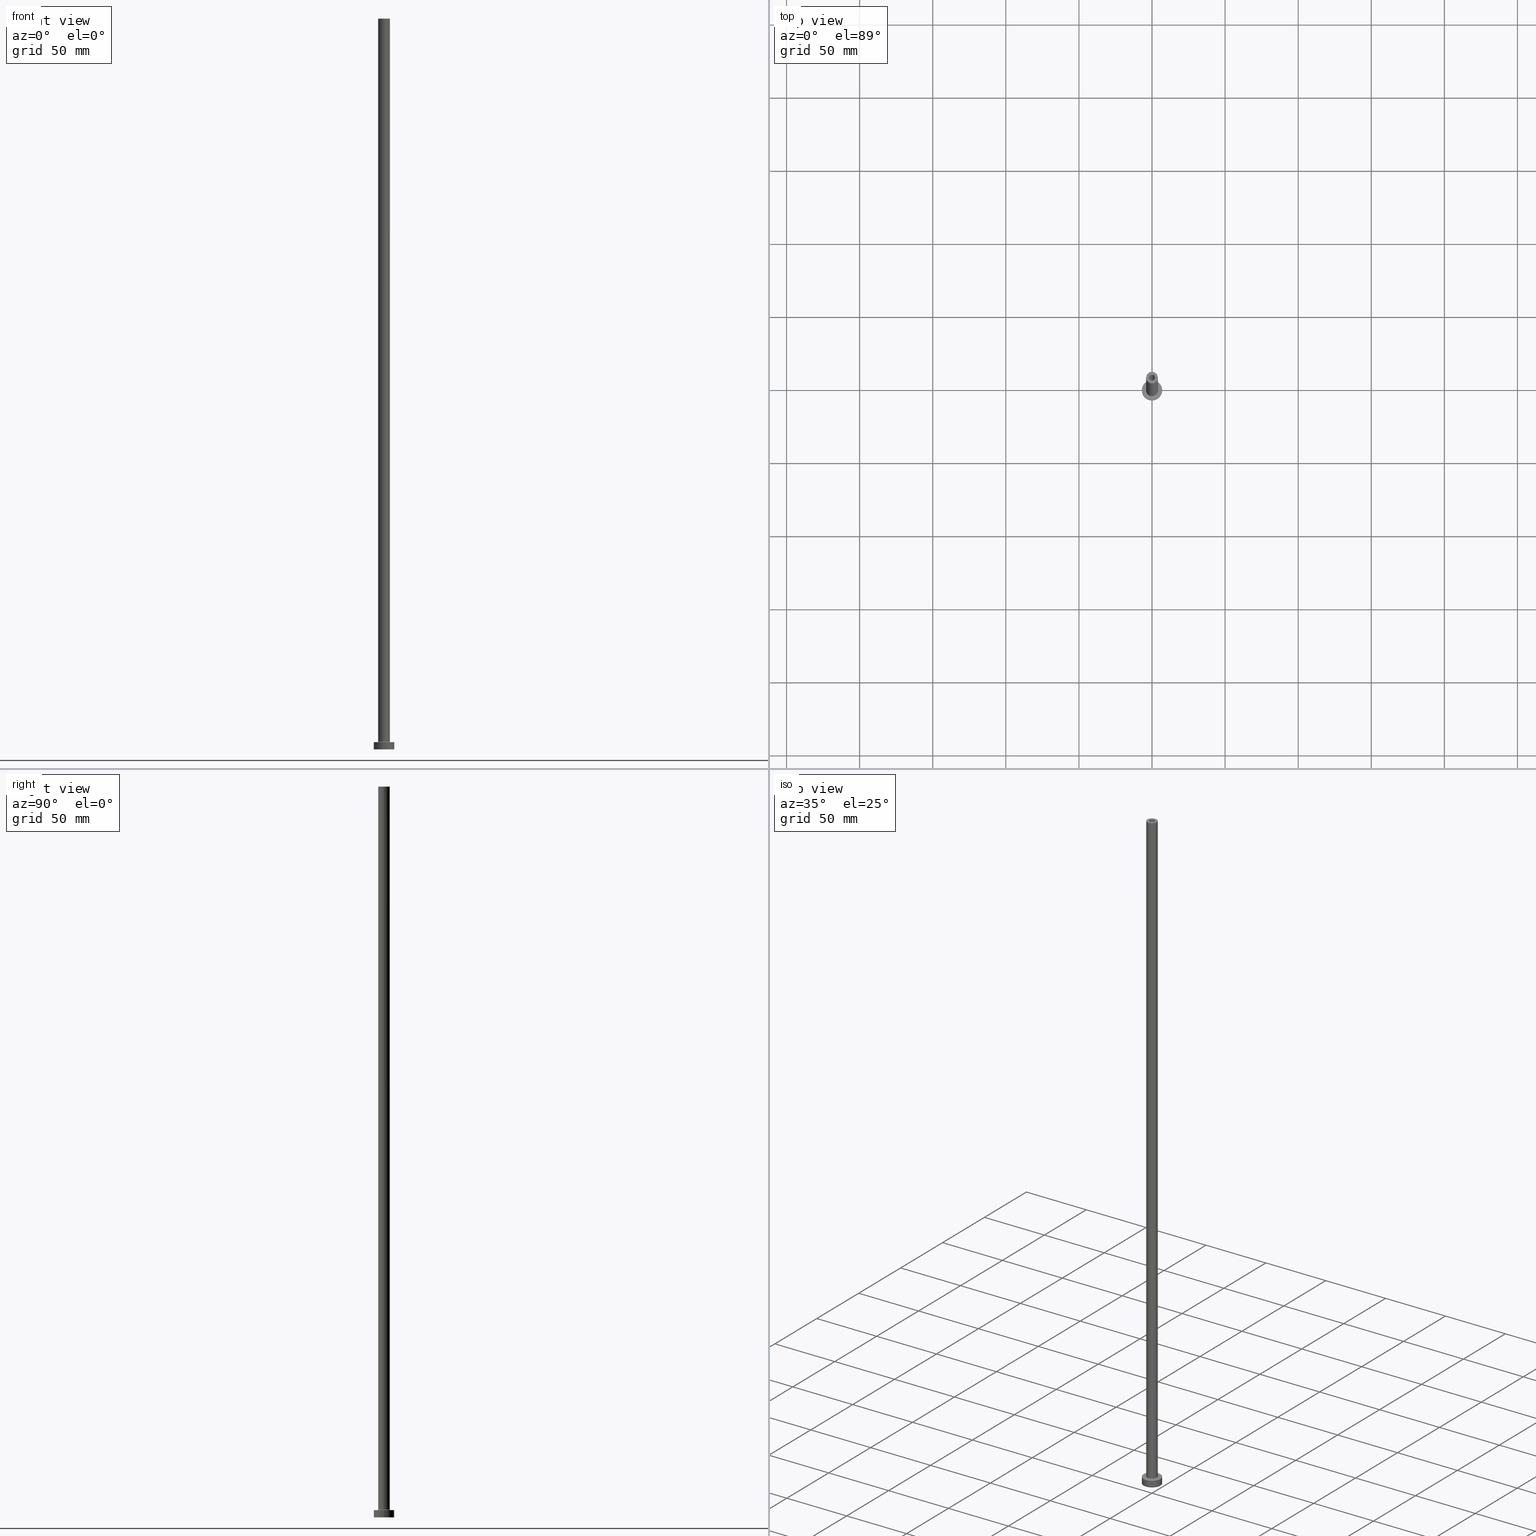
[diagram: canonical four-view strip — front | top / right | iso, engineering-drawing reading convention]
A machine part, canonical four-view strip (front | top / right | iso — engineering-drawing reading convention). The complete STEP part file that produces these views, byte-faithful:
ISO-10303-21;
HEADER;
FILE_DESCRIPTION (( 'STEP AP203' ),
    '1' );
FILE_NAME ('b84e.STEP',
    '2023-02-13T17:37:01',
    ( '' ),
    ( '' ),
    'SwSTEP 2.0',
    'SolidWorks 2019',
    '' );
FILE_SCHEMA (( 'CONFIG_CONTROL_DESIGN' ));
ENDSEC;

DATA;
#1 = ADVANCED_FACE ( 'NONE', ( #301, #177 ), #440, .T. ) ;
#2 = LINE ( 'NONE', #138, #155 ) ;
#3 = CARTESIAN_POINT ( 'NONE',  ( 0.000000000000000000, 0.000000000000000000, 455.0000000000000000 ) ) ;
#4 = AXIS2_PLACEMENT_3D ( 'NONE', #136, #294, #437 ) ;
#5 = PERSON_AND_ORGANIZATION_ROLE ( 'design_owner' ) ;
#6 = COORDINATED_UNIVERSAL_TIME_OFFSET ( 1, 0, .AHEAD. ) ;
#7 = DIRECTION ( 'NONE',  ( 1.000000000000000000, 0.000000000000000000, 0.000000000000000000 ) ) ;
#8 = EDGE_CURVE ( 'NONE', #53, #359, #404, .T. ) ;
#9 = FACE_OUTER_BOUND ( 'NONE', #207, .T. ) ;
#10 = ORIENTED_EDGE ( 'NONE', *, *, #47, .F. ) ;
#11 = CARTESIAN_POINT ( 'NONE',  ( 4.500000000000000888, 0.000000000000000000, 5.000000000000002665 ) ) ;
#12 = CYLINDRICAL_SURFACE ( 'NONE', #333, 2.000000000000000000 ) ;
#13 = DIRECTION ( 'NONE',  ( -0.000000000000000000, -0.000000000000000000, -1.000000000000000000 ) ) ;
#14 = VECTOR ( 'NONE', #121, 1000.000000000000000 ) ;
#15 = ORIENTED_EDGE ( 'NONE', *, *, #58, .T. ) ;
#16 = CIRCLE ( 'NONE', #347, 4.000000000000000000 ) ;
#17 = DIRECTION ( 'NONE',  ( 0.000000000000000000, 0.000000000000000000, -1.000000000000000000 ) ) ;
#18 = LINE ( 'NONE', #219, #331 ) ;
#19 = CARTESIAN_POINT ( 'NONE',  ( -4.000000000000000000, 0.000000000000000000, 500.0000000000000000 ) ) ;
#20 = AXIS2_PLACEMENT_3D ( 'NONE', #83, #174, #221 ) ;
#21 = DIRECTION ( 'NONE',  ( 1.224646799147353207E-16, 1.000000000000000000, -0.000000000000000000 ) ) ;
#22 = ORIENTED_EDGE ( 'NONE', *, *, #38, .F. ) ;
#23 = EDGE_LOOP ( 'NONE', ( #352, #327, #142, #399 ) ) ;
#24 = EDGE_LOOP ( 'NONE', ( #349, #425 ) ) ;
#25 = CARTESIAN_POINT ( 'NONE',  ( 4.000000000000000000, 4.898587196589412829E-16, 500.0000000000000000 ) ) ;
#26 = FACE_OUTER_BOUND ( 'NONE', #334, .T. ) ;
#27 = ORIENTED_EDGE ( 'NONE', *, *, #251, .F. ) ;
#28 = DIRECTION ( 'NONE',  ( 1.000000000000000000, 0.000000000000000000, 0.000000000000000000 ) ) ;
#29 = CALENDAR_DATE ( 2023, 13, 2 ) ;
#30 =( GEOMETRIC_REPRESENTATION_CONTEXT ( 3 ) GLOBAL_UNCERTAINTY_ASSIGNED_CONTEXT ( ( #215 ) ) GLOBAL_UNIT_ASSIGNED_CONTEXT ( ( #329, #278, #319 ) ) REPRESENTATION_CONTEXT ( 'NONE', 'WORKASPACE' ) );
#31 = PERSON_AND_ORGANIZATION ( #370, #405 ) ;
#32 = AXIS2_PLACEMENT_3D ( 'NONE', #187, #439, #338 ) ;
#33 = APPROVAL_DATE_TIME ( #244, #143 ) ;
#34 = ORIENTED_EDGE ( 'NONE', *, *, #217, .T. ) ;
#35 = CIRCLE ( 'NONE', #305, 0.5000000000000004441 ) ;
#36 = DIRECTION ( 'NONE',  ( 0.000000000000000000, 0.000000000000000000, -1.000000000000000000 ) ) ;
#37 = CIRCLE ( 'NONE', #415, 2.000000000000000000 ) ;
#38 = EDGE_CURVE ( 'NONE', #190, #270, #451, .T. ) ;
#39 = DIRECTION ( 'NONE',  ( 1.000000000000000000, 0.000000000000000000, 0.000000000000000000 ) ) ;
#40 = PRODUCT_RELATED_PRODUCT_CATEGORY ( 'detail', '', ( #146 ) ) ;
#41 = AXIS2_PLACEMENT_3D ( 'NONE', #413, #340, #382 ) ;
#42 = ORIENTED_EDGE ( 'NONE', *, *, #206, .F. ) ;
#43 = EDGE_CURVE ( 'NONE', #44, #263, #46, .T. ) ;
#44 = VERTEX_POINT ( 'NONE', #337 ) ;
#45 = CARTESIAN_POINT ( 'NONE',  ( 7.000000000000000000, 8.572527594031473190E-16, 5.000000000000000000 ) ) ;
#46 = LINE ( 'NONE', #180, #51 ) ;
#47 = EDGE_CURVE ( 'NONE', #115, #369, #2, .T. ) ;
#48 = EDGE_LOOP ( 'NONE', ( #277, #214 ) ) ;
#49 = CARTESIAN_POINT ( 'NONE',  ( -7.000000000000000000, 0.000000000000000000, 0.000000000000000000 ) ) ;
#50 = DIRECTION ( 'NONE',  ( -1.000000000000000000, 0.000000000000000000, 0.000000000000000000 ) ) ;
#51 = VECTOR ( 'NONE', #341, 1000.000000000000000 ) ;
#52 = ADVANCED_FACE ( 'NONE', ( #111, #257 ), #409, .F. ) ;
#53 = VERTEX_POINT ( 'NONE', #19 ) ;
#54 = CYLINDRICAL_SURFACE ( 'NONE', #32, 7.000000000000000000 ) ;
#55 = AXIS2_PLACEMENT_3D ( 'NONE', #386, #355, #95 ) ;
#56 = ORIENTED_EDGE ( 'NONE', *, *, #351, .T. ) ;
#57 = AXIS2_PLACEMENT_3D ( 'NONE', #302, #296, #39 ) ;
#58 = EDGE_CURVE ( 'NONE', #270, #190, #458, .T. ) ;
#59 = CARTESIAN_POINT ( 'NONE',  ( 0.000000000000000000, 0.000000000000000000, 0.000000000000000000 ) ) ;
#60 = FACE_OUTER_BOUND ( 'NONE', #238, .T. ) ;
#61 = EDGE_CURVE ( 'NONE', #134, #401, #172, .T. ) ;
#62 = VERTEX_POINT ( 'NONE', #49 ) ;
#63 = CIRCLE ( 'NONE', #85, 4.000000000000000000 ) ;
#64 = ORIENTED_EDGE ( 'NONE', *, *, #206, .T. ) ;
#65 = CARTESIAN_POINT ( 'NONE',  ( 0.000000000000000000, 0.000000000000000000, 5.500000000000005329 ) ) ;
#66 = DATE_AND_TIME ( #326, #373 ) ;
#67 = ORIENTED_EDGE ( 'NONE', *, *, #8, .F. ) ;
#68 = FACE_OUTER_BOUND ( 'NONE', #291, .T. ) ;
#69 = COORDINATED_UNIVERSAL_TIME_OFFSET ( 1, 0, .AHEAD. ) ;
#70 = CC_DESIGN_PERSON_AND_ORGANIZATION_ASSIGNMENT ( #31, #430, ( #265 ) ) ;
#71 = DIRECTION ( 'NONE',  ( 0.000000000000000000, 0.000000000000000000, 1.000000000000000000 ) ) ;
#72 = CIRCLE ( 'NONE', #76, 2.000000000000000000 ) ;
#73 = CARTESIAN_POINT ( 'NONE',  ( 0.000000000000000000, 0.000000000000000000, 500.0000000000000000 ) ) ;
#74 = CARTESIAN_POINT ( 'NONE',  ( -7.000000000000000000, 0.000000000000000000, 5.000000000000000000 ) ) ;
#75 = CIRCLE ( 'NONE', #306, 0.5000000000000004441 ) ;
#76 = AXIS2_PLACEMENT_3D ( 'NONE', #237, #357, #290 ) ;
#77 = LOCAL_TIME ( 18, 37, 1.000000000000000000, #69 ) ;
#78 = ORIENTED_EDGE ( 'NONE', *, *, #119, .T. ) ;
#79 = CYLINDRICAL_SURFACE ( 'NONE', #444, 2.000000000000000000 ) ;
#80 = APPLICATION_PROTOCOL_DEFINITION ( 'international standard', 'config_control_design', 1994, #442 ) ;
#81 = CARTESIAN_POINT ( 'NONE',  ( 0.000000000000000000, 0.000000000000000000, 0.000000000000000000 ) ) ;
#82 = DIRECTION ( 'NONE',  ( 0.000000000000000000, 0.000000000000000000, 1.000000000000000000 ) ) ;
#83 = CARTESIAN_POINT ( 'NONE',  ( 0.000000000000000000, 0.000000000000000000, 5.000000000000000000 ) ) ;
#84 = CARTESIAN_POINT ( 'NONE',  ( 7.000000000000000000, 8.572527594031473190E-16, 5.000000000000000000 ) ) ;
#85 = AXIS2_PLACEMENT_3D ( 'NONE', #193, #248, #252 ) ;
#86 = ORIENTED_EDGE ( 'NONE', *, *, #119, .F. ) ;
#87 = FACE_OUTER_BOUND ( 'NONE', #23, .T. ) ;
#88 = CARTESIAN_POINT ( 'NONE',  ( -2.149999999999999911, 0.000000000000000000, 461.0811183182043465 ) ) ;
#89 = AXIS2_PLACEMENT_3D ( 'NONE', #272, #264, #50 ) ;
#90 = PRODUCT_DEFINITION_SHAPE ( 'NONE', 'NONE',  #265 ) ;
#91 = CARTESIAN_POINT ( 'NONE',  ( 0.000000000000000000, 0.000000000000000000, 461.0811183182043465 ) ) ;
#92 = CARTESIAN_POINT ( 'NONE',  ( -4.500000000000000888, 5.510910596163089556E-16, 5.500000000000005329 ) ) ;
#93 = DIRECTION ( 'NONE',  ( 1.000000000000000000, 0.000000000000000000, 0.000000000000000000 ) ) ;
#94 = ORIENTED_EDGE ( 'NONE', *, *, #162, .F. ) ;
#95 = DIRECTION ( 'NONE',  ( 1.000000000000000000, 0.000000000000000000, 0.000000000000000000 ) ) ;
#96 = ORIENTED_EDGE ( 'NONE', *, *, #157, .T. ) ;
#97 = CIRCLE ( 'NONE', #385, 4.000000000000000000 ) ;
#98 = VECTOR ( 'NONE', #374, 1000.000000000000000 ) ;
#99 = ORIENTED_EDGE ( 'NONE', *, *, #336, .F. ) ;
#100 = LOCAL_TIME ( 18, 37, 1.000000000000000000, #361 ) ;
#101 = PERSON_AND_ORGANIZATION ( #370, #405 ) ;
#102 = CARTESIAN_POINT ( 'NONE',  ( 0.000000000000000000, 0.000000000000000000, 461.0811183182043465 ) ) ;
#103 = APPROVAL_ROLE ( '' ) ;
#104 = EDGE_CURVE ( 'NONE', #53, #448, #18, .T. ) ;
#105 = CARTESIAN_POINT ( 'NONE',  ( 0.000000000000000000, 0.000000000000000000, 0.000000000000000000 ) ) ;
#106 = CARTESIAN_POINT ( 'NONE',  ( -2.000000000000000000, 0.000000000000000000, 455.0000000000000000 ) ) ;
#107 = DIRECTION ( 'NONE',  ( 0.000000000000000000, 0.000000000000000000, 1.000000000000000000 ) ) ;
#108 = CARTESIAN_POINT ( 'NONE',  ( 0.000000000000000000, 0.000000000000000000, 500.0000000000000000 ) ) ;
#109 = AXIS2_PLACEMENT_3D ( 'NONE', #73, #165, #189 ) ;
#110 = AXIS2_PLACEMENT_3D ( 'NONE', #91, #194, #320 ) ;
#111 = FACE_BOUND ( 'NONE', #365, .T. ) ;
#112 = DIRECTION ( 'NONE',  ( -0.000000000000000000, -0.000000000000000000, -1.000000000000000000 ) ) ;
#113 = EDGE_CURVE ( 'NONE', #44, #134, #393, .T. ) ;
#114 = EDGE_LOOP ( 'NONE', ( #99, #127, #317, #383 ) ) ;
#115 = VERTEX_POINT ( 'NONE', #419 ) ;
#116 = PLANE ( 'NONE',  #339 ) ;
#117 = ADVANCED_FACE ( 'NONE', ( #9 ), #54, .T. ) ;
#118 = CARTESIAN_POINT ( 'NONE',  ( 4.500000000000000888, 0.000000000000000000, 5.500000000000005329 ) ) ;
#119 = EDGE_CURVE ( 'NONE', #387, #369, #236, .T. ) ;
#120 = DIRECTION ( 'NONE',  ( 0.000000000000000000, 0.000000000000000000, 1.000000000000000000 ) ) ;
#121 = DIRECTION ( 'NONE',  ( -0.000000000000000000, -0.000000000000000000, -1.000000000000000000 ) ) ;
#122 = CALENDAR_DATE ( 2023, 13, 2 ) ;
#123 = ORIENTED_EDGE ( 'NONE', *, *, #427, .T. ) ;
#124 = ADVANCED_FACE ( 'NONE', ( #60 ), #191, .T. ) ;
#125 = FACE_BOUND ( 'NONE', #350, .T. ) ;
#126 = APPROVAL_ROLE ( '' ) ;
#127 = ORIENTED_EDGE ( 'NONE', *, *, #153, .T. ) ;
#128 = DIRECTION ( 'NONE',  ( -1.000000000000000000, 0.000000000000000000, 0.000000000000000000 ) ) ;
#129 = CARTESIAN_POINT ( 'NONE',  ( -2.149999999999999911, 0.000000000000000000, 455.0000000000000000 ) ) ;
#130 = SECURITY_CLASSIFICATION_LEVEL ( 'unclassified' ) ;
#131 = PERSON_AND_ORGANIZATION ( #370, #405 ) ;
#132 = EDGE_CURVE ( 'NONE', #190, #62, #313, .T. ) ;
#133 = VECTOR ( 'NONE', #213, 1000.000000000000000 ) ;
#134 = VERTEX_POINT ( 'NONE', #129 ) ;
#135 = DIRECTION ( 'NONE',  ( -1.000000000000000000, 0.000000000000000000, 0.000000000000000000 ) ) ;
#136 = CARTESIAN_POINT ( 'NONE',  ( 0.000000000000000000, 0.000000000000000000, 5.500000000000005329 ) ) ;
#137 = CARTESIAN_POINT ( 'NONE',  ( -4.000000000000000000, 0.000000000000000000, 5.500000000000005329 ) ) ;
#138 = CARTESIAN_POINT ( 'NONE',  ( 2.000000000000000000, 2.449293598294705921E-16, 500.0000000000000000 ) ) ;
#139 = FACE_BOUND ( 'NONE', #384, .T. ) ;
#140 = DIRECTION ( 'NONE',  ( 0.000000000000000000, 0.000000000000000000, 1.000000000000000000 ) ) ;
#141 = LOCAL_TIME ( 18, 37, 1.000000000000000000, #330 ) ;
#142 = ORIENTED_EDGE ( 'NONE', *, *, #408, .T. ) ;
#143 = APPROVAL ( #154, 'NEUR�EN�' ) ;
#144 = CARTESIAN_POINT ( 'NONE',  ( 0.000000000000000000, 0.000000000000000000, 5.000000000000000000 ) ) ;
#145 = DIRECTION ( 'NONE',  ( -0.000000000000000000, -0.000000000000000000, -1.000000000000000000 ) ) ;
#146 = PRODUCT ( 'b84e', 'b84e', '', ( #199 ) ) ;
#147 = DIRECTION ( 'NONE',  ( 0.000000000000000000, 0.000000000000000000, 1.000000000000000000 ) ) ;
#148 = CC_DESIGN_APPROVAL ( #261, ( #265 ) ) ;
#149 = DIRECTION ( 'NONE',  ( 0.000000000000000000, -1.000000000000000000, 0.000000000000000000 ) ) ;
#150 = DIRECTION ( 'NONE',  ( -1.000000000000000000, 1.224646799147351482E-16, 0.000000000000000000 ) ) ;
#151 = DIRECTION ( 'NONE',  ( 1.000000000000000000, 0.000000000000000000, 0.000000000000000000 ) ) ;
#152 = ADVANCED_BREP_SHAPE_REPRESENTATION ( 'b84e', ( #234, #460 ), #30 ) ;
#153 = EDGE_CURVE ( 'NONE', #448, #220, #35, .T. ) ;
#154 = APPROVAL_STATUS ( 'not_yet_approved' ) ;
#155 = VECTOR ( 'NONE', #297, 1000.000000000000000 ) ;
#156 = ORIENTED_EDGE ( 'NONE', *, *, #427, .F. ) ;
#157 = EDGE_CURVE ( 'NONE', #225, #448, #97, .T. ) ;
#158 = EDGE_CURVE ( 'NONE', #280, #220, #434, .T. ) ;
#159 = PERSON_AND_ORGANIZATION_ROLE ( 'creator' ) ;
#160 = AXIS2_PLACEMENT_3D ( 'NONE', #59, #447, #275 ) ;
#161 = CARTESIAN_POINT ( 'NONE',  ( 4.000000000000000000, 4.898587196589412829E-16, 500.0000000000000000 ) ) ;
#162 = EDGE_CURVE ( 'NONE', #62, #250, #222, .T. ) ;
#163 = ORIENTED_EDGE ( 'NONE', *, *, #158, .T. ) ;
#164 = AXIS2_PLACEMENT_3D ( 'NONE', #446, #176, #267 ) ;
#165 = DIRECTION ( 'NONE',  ( -0.000000000000000000, -0.000000000000000000, -1.000000000000000000 ) ) ;
#166 = PERSON_AND_ORGANIZATION ( #370, #405 ) ;
#167 = ORIENTED_EDGE ( 'NONE', *, *, #239, .F. ) ;
#168 = AXIS2_PLACEMENT_3D ( 'NONE', #402, #356, #318 ) ;
#169 = CC_DESIGN_APPROVAL ( #143, ( #381 ) ) ;
#170 = CARTESIAN_POINT ( 'NONE',  ( -2.000000000000000000, 0.000000000000000000, 500.0000000000000000 ) ) ;
#171 = ORIENTED_EDGE ( 'NONE', *, *, #61, .F. ) ;
#172 = LINE ( 'NONE', #88, #227 ) ;
#173 = ORIENTED_EDGE ( 'NONE', *, *, #61, .T. ) ;
#174 = DIRECTION ( 'NONE',  ( 0.000000000000000000, 0.000000000000000000, 1.000000000000000000 ) ) ;
#175 = CARTESIAN_POINT ( 'NONE',  ( 0.000000000000000000, 0.000000000000000000, 5.000000000000000000 ) ) ;
#176 = DIRECTION ( 'NONE',  ( 0.000000000000000000, 0.000000000000000000, 1.000000000000000000 ) ) ;
#177 = FACE_OUTER_BOUND ( 'NONE', #24, .T. ) ;
#178 = CIRCLE ( 'NONE', #348, 2.149999999999999911 ) ;
#179 = ORIENTED_EDGE ( 'NONE', *, *, #132, .T. ) ;
#180 = CARTESIAN_POINT ( 'NONE',  ( 2.149999999999999911, 2.632990618166809235E-16, 461.0811183182043465 ) ) ;
#181 = CARTESIAN_POINT ( 'NONE',  ( -2.000000000000000000, 0.000000000000000000, 500.0000000000000000 ) ) ;
#182 = ADVANCED_FACE ( 'NONE', ( #26 ), #422, .F. ) ;
#183 = AXIS2_PLACEMENT_3D ( 'NONE', #218, #376, #7 ) ;
#184 = CC_DESIGN_DATE_AND_TIME_ASSIGNMENT ( #66, #246, ( #381 ) ) ;
#185 = DIRECTION ( 'NONE',  ( 0.000000000000000000, 0.000000000000000000, -1.000000000000000000 ) ) ;
#186 = APPROVAL_PERSON_ORGANIZATION ( #228, #261, #103 ) ;
#187 = CARTESIAN_POINT ( 'NONE',  ( 0.000000000000000000, 0.000000000000000000, 5.000000000000000000 ) ) ;
#188 = ADVANCED_FACE ( 'NONE', ( #125, #232 ), #273, .F. ) ;
#189 = DIRECTION ( 'NONE',  ( -1.000000000000000000, 0.000000000000000000, 0.000000000000000000 ) ) ;
#190 = VERTEX_POINT ( 'NONE', #74 ) ;
#191 = CYLINDRICAL_SURFACE ( 'NONE', #109, 4.000000000000000000 ) ;
#192 = AXIS2_PLACEMENT_3D ( 'NONE', #108, #380, #390 ) ;
#193 = CARTESIAN_POINT ( 'NONE',  ( 0.000000000000000000, 0.000000000000000000, 5.500000000000005329 ) ) ;
#194 = DIRECTION ( 'NONE',  ( 0.000000000000000000, 0.000000000000000000, -1.000000000000000000 ) ) ;
#195 = ORIENTED_EDGE ( 'NONE', *, *, #43, .F. ) ;
#196 = DATE_AND_TIME ( #360, #312 ) ;
#197 = EDGE_CURVE ( 'NONE', #359, #53, #16, .T. ) ;
#198 = ADVANCED_FACE ( 'NONE', ( #406 ), #79, .F. ) ;
#199 = MECHANICAL_CONTEXT ( 'NONE', #271, 'mechanical' ) ;
#200 = APPROVAL_STATUS ( 'not_yet_approved' ) ;
#201 = CALENDAR_DATE ( 2023, 13, 2 ) ;
#202 = CARTESIAN_POINT ( 'NONE',  ( 0.000000000000000000, 0.000000000000000000, 0.000000000000000000 ) ) ;
#203 = APPROVAL_ROLE ( '' ) ;
#204 = ORIENTED_EDGE ( 'NONE', *, *, #351, .F. ) ;
#205 = AXIS2_PLACEMENT_3D ( 'NONE', #443, #345, #28 ) ;
#206 = EDGE_CURVE ( 'NONE', #270, #250, #293, .T. ) ;
#207 = EDGE_LOOP ( 'NONE', ( #258, #64, #392, #256 ) ) ;
#208 = CARTESIAN_POINT ( 'NONE',  ( 4.000000000000000000, 4.898587196589412829E-16, 5.500000000000005329 ) ) ;
#209 = CARTESIAN_POINT ( 'NONE',  ( 0.000000000000000000, 0.000000000000000000, 500.0000000000000000 ) ) ;
#210 = ORIENTED_EDGE ( 'NONE', *, *, #162, .T. ) ;
#211 = AXIS2_PLACEMENT_3D ( 'NONE', #175, #112, #441 ) ;
#212 = APPROVAL_PERSON_ORGANIZATION ( #396, #143, #203 ) ;
#213 = DIRECTION ( 'NONE',  ( -0.000000000000000000, -0.000000000000000000, -1.000000000000000000 ) ) ;
#214 = ORIENTED_EDGE ( 'NONE', *, *, #113, .F. ) ;
#215 = UNCERTAINTY_MEASURE_WITH_UNIT (LENGTH_MEASURE( 1.000000000000000082E-05 ), #329, 'distance_accuracy_value', 'NONE');
#216 = PERSON_AND_ORGANIZATION ( #370, #405 ) ;
#217 = EDGE_CURVE ( 'NONE', #263, #401, #438, .T. ) ;
#218 = CARTESIAN_POINT ( 'NONE',  ( 0.000000000000000000, 0.000000000000000000, 500.0000000000000000 ) ) ;
#219 = CARTESIAN_POINT ( 'NONE',  ( -4.000000000000000000, 0.000000000000000000, 500.0000000000000000 ) ) ;
#220 = VERTEX_POINT ( 'NONE', #400 ) ;
#221 = DIRECTION ( 'NONE',  ( 1.000000000000000000, 0.000000000000000000, 0.000000000000000000 ) ) ;
#222 = CIRCLE ( 'NONE', #160, 7.000000000000000000 ) ;
#223 = CYLINDRICAL_SURFACE ( 'NONE', #192, 4.000000000000000000 ) ;
#224 = CARTESIAN_POINT ( 'NONE',  ( 0.000000000000000000, 0.000000000000000000, 0.000000000000000000 ) ) ;
#225 = VERTEX_POINT ( 'NONE', #208 ) ;
#226 = CARTESIAN_POINT ( 'NONE',  ( 0.000000000000000000, 0.000000000000000000, 500.0000000000000000 ) ) ;
#227 = VECTOR ( 'NONE', #416, 1000.000000000000000 ) ;
#228 = PERSON_AND_ORGANIZATION ( #370, #405 ) ;
#229 = ORIENTED_EDGE ( 'NONE', *, *, #113, .T. ) ;
#230 = CIRCLE ( 'NONE', #211, 4.500000000000000888 ) ;
#231 = FACE_OUTER_BOUND ( 'NONE', #321, .T. ) ;
#232 = FACE_OUTER_BOUND ( 'NONE', #48, .T. ) ;
#233 = EDGE_LOOP ( 'NONE', ( #27, #156 ) ) ;
#234 = MANIFOLD_SOLID_BREP ( 'Odebrat vysunut�m4', #247 ) ;
#235 = CARTESIAN_POINT ( 'NONE',  ( 0.000000000000000000, 0.000000000000000000, 500.0000000000000000 ) ) ;
#236 = CIRCLE ( 'NONE', #303, 2.000000000000000000 ) ;
#237 = CARTESIAN_POINT ( 'NONE',  ( 0.000000000000000000, 0.000000000000000000, 500.0000000000000000 ) ) ;
#238 = EDGE_LOOP ( 'NONE', ( #429, #260, #96, #398 ) ) ;
#239 = EDGE_CURVE ( 'NONE', #369, #387, #455, .T. ) ;
#240 = DIRECTION ( 'NONE',  ( 1.000000000000000000, 0.000000000000000000, 0.000000000000000000 ) ) ;
#241 = AXIS2_PLACEMENT_3D ( 'NONE', #105, #287, #432 ) ;
#242 = EDGE_LOOP ( 'NONE', ( #461, #423, #86, #342 ) ) ;
#243 = CYLINDRICAL_SURFACE ( 'NONE', #289, 2.149999999999999911 ) ;
#244 = DATE_AND_TIME ( #122, #77 ) ;
#245 = DIRECTION ( 'NONE',  ( 1.000000000000000000, 0.000000000000000000, 0.000000000000000000 ) ) ;
#246 = DATE_TIME_ROLE ( 'classification_date' ) ;
#247 = CLOSED_SHELL ( 'NONE', ( #198, #182, #457, #124, #117, #285, #282, #52, #418, #1, #389, #300, #188, #292 ) ) ;
#248 = DIRECTION ( 'NONE',  ( 0.000000000000000000, 0.000000000000000000, 1.000000000000000000 ) ) ;
#249 = AXIS2_PLACEMENT_3D ( 'NONE', #255, #410, #298 ) ;
#250 = VERTEX_POINT ( 'NONE', #283 ) ;
#251 = EDGE_CURVE ( 'NONE', #274, #115, #37, .T. ) ;
#252 = DIRECTION ( 'NONE',  ( 1.000000000000000000, 0.000000000000000000, 0.000000000000000000 ) ) ;
#253 = APPLICATION_PROTOCOL_DEFINITION ( 'international standard', 'config_control_design', 1994, #271 ) ;
#254 = CIRCLE ( 'NONE', #362, 7.000000000000000000 ) ;
#255 = CARTESIAN_POINT ( 'NONE',  ( 0.000000000000000000, 0.000000000000000000, 455.0000000000000000 ) ) ;
#256 = ORIENTED_EDGE ( 'NONE', *, *, #132, .F. ) ;
#257 = FACE_OUTER_BOUND ( 'NONE', #453, .T. ) ;
#258 = ORIENTED_EDGE ( 'NONE', *, *, #58, .F. ) ;
#259 = EDGE_CURVE ( 'NONE', #220, #280, #230, .T. ) ;
#260 = ORIENTED_EDGE ( 'NONE', *, *, #375, .T. ) ;
#261 = APPROVAL ( #200, 'NEUR�EN�' ) ;
#262 = APPROVAL_PERSON_ORGANIZATION ( #166, #379, #126 ) ;
#263 = VERTEX_POINT ( 'NONE', #414 ) ;
#264 = DIRECTION ( 'NONE',  ( -0.000000000000000000, -0.000000000000000000, -1.000000000000000000 ) ) ;
#265 = PRODUCT_DEFINITION ( 'NEZN�M�', '', #323, #378 ) ;
#266 = DIRECTION ( 'NONE',  ( 1.000000000000000000, 0.000000000000000000, 0.000000000000000000 ) ) ;
#267 = DIRECTION ( 'NONE',  ( 1.000000000000000000, 0.000000000000000000, 0.000000000000000000 ) ) ;
#268 = FACE_OUTER_BOUND ( 'NONE', #324, .T. ) ;
#269 = CARTESIAN_POINT ( 'NONE',  ( -2.149999999999999911, 0.000000000000000000, 0.000000000000000000 ) ) ;
#270 = VERTEX_POINT ( 'NONE', #84 ) ;
#271 = APPLICATION_CONTEXT ( 'configuration controlled 3d designs of mechanical parts and assemblies' ) ;
#272 = CARTESIAN_POINT ( 'NONE',  ( 0.000000000000000000, 0.000000000000000000, 5.000000000000000000 ) ) ;
#273 = PLANE ( 'NONE',  #249 ) ;
#274 = VERTEX_POINT ( 'NONE', #181 ) ;
#275 = DIRECTION ( 'NONE',  ( 1.000000000000000000, 0.000000000000000000, 0.000000000000000000 ) ) ;
#276 = PERSON_AND_ORGANIZATION_ROLE ( 'design_supplier' ) ;
#277 = ORIENTED_EDGE ( 'NONE', *, *, #314, .F. ) ;
#278 =( NAMED_UNIT ( * ) PLANE_ANGLE_UNIT ( ) SI_UNIT ( $, .RADIAN. ) );
#279 = VECTOR ( 'NONE', #325, 1000.000000000000000 ) ;
#280 = VERTEX_POINT ( 'NONE', #11 ) ;
#281 = CC_DESIGN_SECURITY_CLASSIFICATION ( #381, ( #323 ) ) ;
#282 = ADVANCED_FACE ( 'NONE', ( #139, #231 ), #116, .T. ) ;
#283 = CARTESIAN_POINT ( 'NONE',  ( 7.000000000000000000, 8.572527594031473190E-16, 0.000000000000000000 ) ) ;
#284 = PERSON_AND_ORGANIZATION_ROLE ( 'classification_officer' ) ;
#285 = ADVANCED_FACE ( 'NONE', ( #311 ), #315, .T. ) ;
#286 = DIRECTION ( 'NONE',  ( 0.000000000000000000, 0.000000000000000000, 1.000000000000000000 ) ) ;
#287 = DIRECTION ( 'NONE',  ( -0.000000000000000000, -0.000000000000000000, -1.000000000000000000 ) ) ;
#288 = ORIENTED_EDGE ( 'NONE', *, *, #436, .T. ) ;
#289 = AXIS2_PLACEMENT_3D ( 'NONE', #102, #454, #128 ) ;
#290 = DIRECTION ( 'NONE',  ( 1.000000000000000000, 0.000000000000000000, 0.000000000000000000 ) ) ;
#291 = EDGE_LOOP ( 'NONE', ( #195, #229, #173, #56 ) ) ;
#292 = ADVANCED_FACE ( 'NONE', ( #344 ), #12, .F. ) ;
#293 = LINE ( 'NONE', #45, #133 ) ;
#294 = DIRECTION ( 'NONE',  ( 0.000000000000000000, 0.000000000000000000, 1.000000000000000000 ) ) ;
#295 = CC_DESIGN_APPROVAL ( #379, ( #323 ) ) ;
#296 = DIRECTION ( 'NONE',  ( 0.000000000000000000, 0.000000000000000000, 1.000000000000000000 ) ) ;
#297 = DIRECTION ( 'NONE',  ( 0.000000000000000000, 0.000000000000000000, -1.000000000000000000 ) ) ;
#298 = DIRECTION ( 'NONE',  ( 1.000000000000000000, 0.000000000000000000, -0.000000000000000000 ) ) ;
#299 = DIRECTION ( 'NONE',  ( 1.000000000000000000, 0.000000000000000000, -0.000000000000000000 ) ) ;
#300 = ADVANCED_FACE ( 'NONE', ( #68 ), #243, .F. ) ;
#301 = FACE_BOUND ( 'NONE', #233, .T. ) ;
#302 = CARTESIAN_POINT ( 'NONE',  ( 0.000000000000000000, 0.000000000000000000, 5.000000000000000000 ) ) ;
#303 = AXIS2_PLACEMENT_3D ( 'NONE', #3, #411, #93 ) ;
#304 = ORIENTED_EDGE ( 'NONE', *, *, #104, .T. ) ;
#305 = AXIS2_PLACEMENT_3D ( 'NONE', #92, #21, #150 ) ;
#306 = AXIS2_PLACEMENT_3D ( 'NONE', #118, #149, #17 ) ;
#307 = CC_DESIGN_DATE_AND_TIME_ASSIGNMENT ( #367, #433, ( #265 ) ) ;
#308 = ORIENTED_EDGE ( 'NONE', *, *, #239, .T. ) ;
#309 = DIRECTION ( 'NONE',  ( 1.000000000000000000, 0.000000000000000000, 0.000000000000000000 ) ) ;
#310 = ORIENTED_EDGE ( 'NONE', *, *, #43, .T. ) ;
#311 = FACE_OUTER_BOUND ( 'NONE', #368, .T. ) ;
#312 = LOCAL_TIME ( 18, 37, 1.000000000000000000, #6 ) ;
#313 = LINE ( 'NONE', #456, #14 ) ;
#314 = EDGE_CURVE ( 'NONE', #134, #44, #178, .T. ) ;
#315 = CYLINDRICAL_SURFACE ( 'NONE', #89, 7.000000000000000000 ) ;
#316 = CC_DESIGN_PERSON_AND_ORGANIZATION_ASSIGNMENT ( #131, #276, ( #323 ) ) ;
#317 = ORIENTED_EDGE ( 'NONE', *, *, #158, .F. ) ;
#318 = DIRECTION ( 'NONE',  ( 1.000000000000000000, 0.000000000000000000, 0.000000000000000000 ) ) ;
#319 =( NAMED_UNIT ( * ) SI_UNIT ( $, .STERADIAN. ) SOLID_ANGLE_UNIT ( ) );
#320 = DIRECTION ( 'NONE',  ( -1.000000000000000000, 0.000000000000000000, 0.000000000000000000 ) ) ;
#321 = EDGE_LOOP ( 'NONE', ( #431, #15 ) ) ;
#322 = APPROVAL_STATUS ( 'not_yet_approved' ) ;
#323 = PRODUCT_DEFINITION_FORMATION_WITH_SPECIFIED_SOURCE ( 'LIBOVOLN�', '', #146, .NOT_KNOWN. ) ;
#324 = EDGE_LOOP ( 'NONE', ( #346, #67, #304, #388 ) ) ;
#325 = DIRECTION ( 'NONE',  ( -0.000000000000000000, -0.000000000000000000, -1.000000000000000000 ) ) ;
#326 = CALENDAR_DATE ( 2023, 13, 2 ) ;
#327 = ORIENTED_EDGE ( 'NONE', *, *, #157, .F. ) ;
#328 = DIRECTION ( 'NONE',  ( -1.000000000000000000, 0.000000000000000000, 0.000000000000000000 ) ) ;
#329 =( LENGTH_UNIT ( ) NAMED_UNIT ( * ) SI_UNIT ( .MILLI., .METRE. ) );
#330 = COORDINATED_UNIVERSAL_TIME_OFFSET ( 1, 0, .AHEAD. ) ;
#331 = VECTOR ( 'NONE', #13, 1000.000000000000000 ) ;
#332 = DIRECTION ( 'NONE',  ( 1.000000000000000000, 0.000000000000000000, 0.000000000000000000 ) ) ;
#333 = AXIS2_PLACEMENT_3D ( 'NONE', #226, #185, #328 ) ;
#334 = EDGE_LOOP ( 'NONE', ( #354, #310, #34, #171 ) ) ;
#335 = FACE_OUTER_BOUND ( 'NONE', #114, .T. ) ;
#336 = EDGE_CURVE ( 'NONE', #448, #225, #63, .T. ) ;
#337 = CARTESIAN_POINT ( 'NONE',  ( 2.149999999999999911, 2.632990618166809235E-16, 455.0000000000000000 ) ) ;
#338 = DIRECTION ( 'NONE',  ( -1.000000000000000000, 0.000000000000000000, 0.000000000000000000 ) ) ;
#339 = AXIS2_PLACEMENT_3D ( 'NONE', #144, #147, #417 ) ;
#340 = DIRECTION ( 'NONE',  ( 0.000000000000000000, 0.000000000000000000, 1.000000000000000000 ) ) ;
#341 = DIRECTION ( 'NONE',  ( 0.000000000000000000, 0.000000000000000000, -1.000000000000000000 ) ) ;
#342 = ORIENTED_EDGE ( 'NONE', *, *, #436, .F. ) ;
#343 = DIRECTION ( 'NONE',  ( 0.000000000000000000, 0.000000000000000000, 1.000000000000000000 ) ) ;
#344 = FACE_OUTER_BOUND ( 'NONE', #407, .T. ) ;
#345 = DIRECTION ( 'NONE',  ( 0.000000000000000000, 0.000000000000000000, 1.000000000000000000 ) ) ;
#346 = ORIENTED_EDGE ( 'NONE', *, *, #375, .F. ) ;
#347 = AXIS2_PLACEMENT_3D ( 'NONE', #209, #82, #332 ) ;
#348 = AXIS2_PLACEMENT_3D ( 'NONE', #364, #286, #245 ) ;
#349 = ORIENTED_EDGE ( 'NONE', *, *, #8, .T. ) ;
#350 = EDGE_LOOP ( 'NONE', ( #78, #308 ) ) ;
#351 = EDGE_CURVE ( 'NONE', #401, #263, #428, .T. ) ;
#352 = ORIENTED_EDGE ( 'NONE', *, *, #153, .F. ) ;
#353 = ORIENTED_EDGE ( 'NONE', *, *, #217, .F. ) ;
#354 = ORIENTED_EDGE ( 'NONE', *, *, #314, .T. ) ;
#355 = DIRECTION ( 'NONE',  ( 0.000000000000000000, 0.000000000000000000, 1.000000000000000000 ) ) ;
#356 = DIRECTION ( 'NONE',  ( -0.000000000000000000, -0.000000000000000000, -1.000000000000000000 ) ) ;
#357 = DIRECTION ( 'NONE',  ( 0.000000000000000000, 0.000000000000000000, 1.000000000000000000 ) ) ;
#358 = CC_DESIGN_PERSON_AND_ORGANIZATION_ASSIGNMENT ( #216, #5, ( #146 ) ) ;
#359 = VERTEX_POINT ( 'NONE', #25 ) ;
#360 = CALENDAR_DATE ( 2023, 13, 2 ) ;
#361 = COORDINATED_UNIVERSAL_TIME_OFFSET ( 1, 0, .AHEAD. ) ;
#362 = AXIS2_PLACEMENT_3D ( 'NONE', #202, #71, #151 ) ;
#363 = APPROVAL_DATE_TIME ( #424, #379 ) ;
#364 = CARTESIAN_POINT ( 'NONE',  ( 0.000000000000000000, 0.000000000000000000, 455.0000000000000000 ) ) ;
#365 = EDGE_LOOP ( 'NONE', ( #204, #353 ) ) ;
#366 = EDGE_CURVE ( 'NONE', #250, #62, #254, .T. ) ;
#367 = DATE_AND_TIME ( #29, #100 ) ;
#368 = EDGE_LOOP ( 'NONE', ( #42, #22, #179, #210 ) ) ;
#369 = VERTEX_POINT ( 'NONE', #450 ) ;
#370 = PERSON ( 'NEUR�EN�', 'NEUR�EN�', 'NEUR�EN�', ('NEUR�EN�'), ('NEUR�EN�'), ('NEUR�EN�') ) ;
#371 = LINE ( 'NONE', #170, #98 ) ;
#372 = TOROIDAL_SURFACE ( 'NONE', #4, 4.500000000000000888, 0.5000000000000000000 ) ;
#373 = LOCAL_TIME ( 18, 37, 1.000000000000000000, #452 ) ;
#374 = DIRECTION ( 'NONE',  ( 0.000000000000000000, 0.000000000000000000, -1.000000000000000000 ) ) ;
#375 = EDGE_CURVE ( 'NONE', #359, #225, #426, .T. ) ;
#376 = DIRECTION ( 'NONE',  ( 0.000000000000000000, 0.000000000000000000, 1.000000000000000000 ) ) ;
#377 = DIRECTION ( 'NONE',  ( 1.000000000000000000, 0.000000000000000000, 0.000000000000000000 ) ) ;
#378 = DESIGN_CONTEXT ( 'detailed design', #442, 'design' ) ;
#379 = APPROVAL ( #322, 'NEUR�EN�' ) ;
#380 = DIRECTION ( 'NONE',  ( -0.000000000000000000, -0.000000000000000000, -1.000000000000000000 ) ) ;
#381 = SECURITY_CLASSIFICATION ( '', '', #130 ) ;
#382 = DIRECTION ( 'NONE',  ( 1.000000000000000000, 0.000000000000000000, -0.000000000000000000 ) ) ;
#383 = ORIENTED_EDGE ( 'NONE', *, *, #408, .F. ) ;
#384 = EDGE_LOOP ( 'NONE', ( #163, #420 ) ) ;
#385 = AXIS2_PLACEMENT_3D ( 'NONE', #65, #120, #240 ) ;
#386 = CARTESIAN_POINT ( 'NONE',  ( 0.000000000000000000, 0.000000000000000000, 5.500000000000005329 ) ) ;
#387 = VERTEX_POINT ( 'NONE', #106 ) ;
#388 = ORIENTED_EDGE ( 'NONE', *, *, #336, .T. ) ;
#389 = ADVANCED_FACE ( 'NONE', ( #87 ), #395, .F. ) ;
#390 = DIRECTION ( 'NONE',  ( -1.000000000000000000, 0.000000000000000000, 0.000000000000000000 ) ) ;
#391 = ORIENTED_EDGE ( 'NONE', *, *, #366, .F. ) ;
#392 = ORIENTED_EDGE ( 'NONE', *, *, #366, .T. ) ;
#393 = CIRCLE ( 'NONE', #164, 2.149999999999999911 ) ;
#394 = CARTESIAN_POINT ( 'NONE',  ( 0.000000000000000000, 0.000000000000000000, 5.000000000000000000 ) ) ;
#395 = TOROIDAL_SURFACE ( 'NONE', #55, 4.500000000000000888, 0.5000000000000000000 ) ;
#396 = PERSON_AND_ORGANIZATION ( #370, #405 ) ;
#397 = SHAPE_DEFINITION_REPRESENTATION ( #90, #152 ) ;
#398 = ORIENTED_EDGE ( 'NONE', *, *, #104, .F. ) ;
#399 = ORIENTED_EDGE ( 'NONE', *, *, #259, .F. ) ;
#400 = CARTESIAN_POINT ( 'NONE',  ( -4.500000000000000888, 5.510910596163088569E-16, 5.000000000000002665 ) ) ;
#401 = VERTEX_POINT ( 'NONE', #269 ) ;
#402 = CARTESIAN_POINT ( 'NONE',  ( 0.000000000000000000, 0.000000000000000000, 0.000000000000000000 ) ) ;
#403 = CC_DESIGN_PERSON_AND_ORGANIZATION_ASSIGNMENT ( #101, #159, ( #323 ) ) ;
#404 = CIRCLE ( 'NONE', #183, 4.000000000000000000 ) ;
#405 = ORGANIZATION ( 'NEUR�EN�', 'NEUR�EN�', '' ) ;
#406 = FACE_OUTER_BOUND ( 'NONE', #242, .T. ) ;
#407 = EDGE_LOOP ( 'NONE', ( #10, #123, #288, #167 ) ) ;
#408 = EDGE_CURVE ( 'NONE', #225, #280, #75, .T. ) ;
#409 = PLANE ( 'NONE',  #412 ) ;
#410 = DIRECTION ( 'NONE',  ( 0.000000000000000000, 0.000000000000000000, 1.000000000000000000 ) ) ;
#411 = DIRECTION ( 'NONE',  ( 0.000000000000000000, 0.000000000000000000, 1.000000000000000000 ) ) ;
#412 = AXIS2_PLACEMENT_3D ( 'NONE', #81, #140, #299 ) ;
#413 = CARTESIAN_POINT ( 'NONE',  ( 0.000000000000000000, 0.000000000000000000, 500.0000000000000000 ) ) ;
#414 = CARTESIAN_POINT ( 'NONE',  ( 2.149999999999999911, 2.632990618166809235E-16, 0.000000000000000000 ) ) ;
#415 = AXIS2_PLACEMENT_3D ( 'NONE', #235, #107, #377 ) ;
#416 = DIRECTION ( 'NONE',  ( 0.000000000000000000, 0.000000000000000000, -1.000000000000000000 ) ) ;
#417 = DIRECTION ( 'NONE',  ( 1.000000000000000000, 0.000000000000000000, -0.000000000000000000 ) ) ;
#418 = ADVANCED_FACE ( 'NONE', ( #268 ), #223, .T. ) ;
#419 = CARTESIAN_POINT ( 'NONE',  ( 2.000000000000000000, 2.449293598294705921E-16, 500.0000000000000000 ) ) ;
#420 = ORIENTED_EDGE ( 'NONE', *, *, #259, .T. ) ;
#421 = AXIS2_PLACEMENT_3D ( 'NONE', #394, #145, #309 ) ;
#422 = CYLINDRICAL_SURFACE ( 'NONE', #110, 2.149999999999999911 ) ;
#423 = ORIENTED_EDGE ( 'NONE', *, *, #47, .T. ) ;
#424 = DATE_AND_TIME ( #201, #141 ) ;
#425 = ORIENTED_EDGE ( 'NONE', *, *, #197, .T. ) ;
#426 = LINE ( 'NONE', #161, #279 ) ;
#427 = EDGE_CURVE ( 'NONE', #115, #274, #72, .T. ) ;
#428 = CIRCLE ( 'NONE', #168, 2.149999999999999911 ) ;
#429 = ORIENTED_EDGE ( 'NONE', *, *, #197, .F. ) ;
#430 = PERSON_AND_ORGANIZATION_ROLE ( 'creator' ) ;
#431 = ORIENTED_EDGE ( 'NONE', *, *, #38, .T. ) ;
#432 = DIRECTION ( 'NONE',  ( 1.000000000000000000, 0.000000000000000000, 0.000000000000000000 ) ) ;
#433 = DATE_TIME_ROLE ( 'creation_date' ) ;
#434 = CIRCLE ( 'NONE', #421, 4.500000000000000888 ) ;
#435 = CARTESIAN_POINT ( 'NONE',  ( 0.000000000000000000, 0.000000000000000000, 500.0000000000000000 ) ) ;
#436 = EDGE_CURVE ( 'NONE', #274, #387, #371, .T. ) ;
#437 = DIRECTION ( 'NONE',  ( 1.000000000000000000, 0.000000000000000000, 0.000000000000000000 ) ) ;
#438 = CIRCLE ( 'NONE', #241, 2.149999999999999911 ) ;
#439 = DIRECTION ( 'NONE',  ( -0.000000000000000000, -0.000000000000000000, -1.000000000000000000 ) ) ;
#440 = PLANE ( 'NONE',  #41 ) ;
#441 = DIRECTION ( 'NONE',  ( 1.000000000000000000, 0.000000000000000000, 0.000000000000000000 ) ) ;
#442 = APPLICATION_CONTEXT ( 'configuration controlled 3d designs of mechanical parts and assemblies' ) ;
#443 = CARTESIAN_POINT ( 'NONE',  ( 0.000000000000000000, 0.000000000000000000, 455.0000000000000000 ) ) ;
#444 = AXIS2_PLACEMENT_3D ( 'NONE', #435, #36, #135 ) ;
#445 = CC_DESIGN_PERSON_AND_ORGANIZATION_ASSIGNMENT ( #459, #284, ( #381 ) ) ;
#446 = CARTESIAN_POINT ( 'NONE',  ( 0.000000000000000000, 0.000000000000000000, 455.0000000000000000 ) ) ;
#447 = DIRECTION ( 'NONE',  ( 0.000000000000000000, 0.000000000000000000, 1.000000000000000000 ) ) ;
#448 = VERTEX_POINT ( 'NONE', #137 ) ;
#449 = APPROVAL_DATE_TIME ( #196, #261 ) ;
#450 = CARTESIAN_POINT ( 'NONE',  ( 2.000000000000000000, 2.449293598294705921E-16, 455.0000000000000000 ) ) ;
#451 = CIRCLE ( 'NONE', #20, 7.000000000000000000 ) ;
#452 = COORDINATED_UNIVERSAL_TIME_OFFSET ( 1, 0, .AHEAD. ) ;
#453 = EDGE_LOOP ( 'NONE', ( #94, #391 ) ) ;
#454 = DIRECTION ( 'NONE',  ( 0.000000000000000000, 0.000000000000000000, -1.000000000000000000 ) ) ;
#455 = CIRCLE ( 'NONE', #205, 2.000000000000000000 ) ;
#456 = CARTESIAN_POINT ( 'NONE',  ( -7.000000000000000000, 0.000000000000000000, 5.000000000000000000 ) ) ;
#457 = ADVANCED_FACE ( 'NONE', ( #335 ), #372, .F. ) ;
#458 = CIRCLE ( 'NONE', #57, 7.000000000000000000 ) ;
#459 = PERSON_AND_ORGANIZATION ( #370, #405 ) ;
#460 = AXIS2_PLACEMENT_3D ( 'NONE', #224, #343, #266 ) ;
#461 = ORIENTED_EDGE ( 'NONE', *, *, #251, .T. ) ;
ENDSEC;
END-ISO-10303-21;
